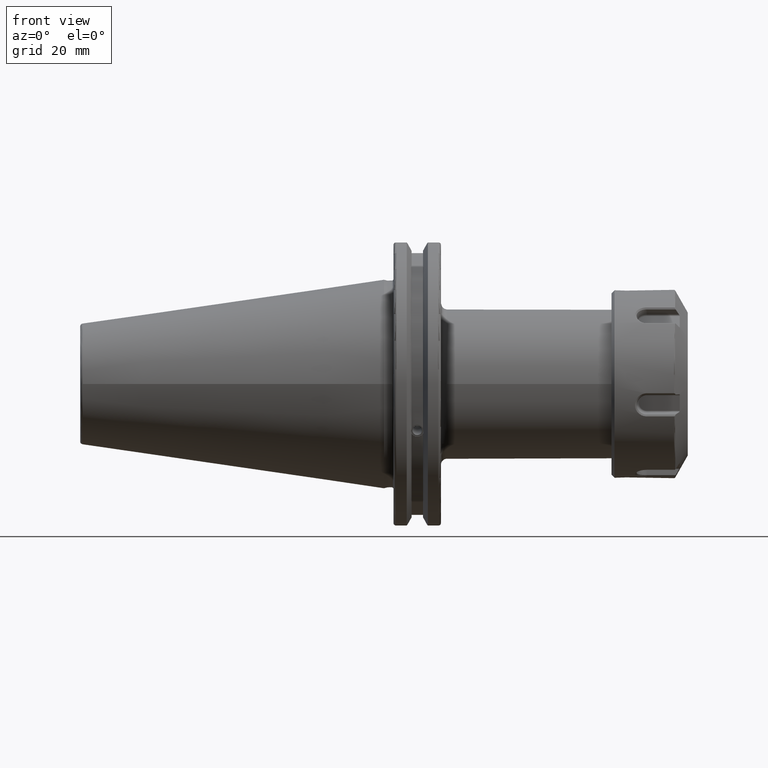
[diagram: clean part render]
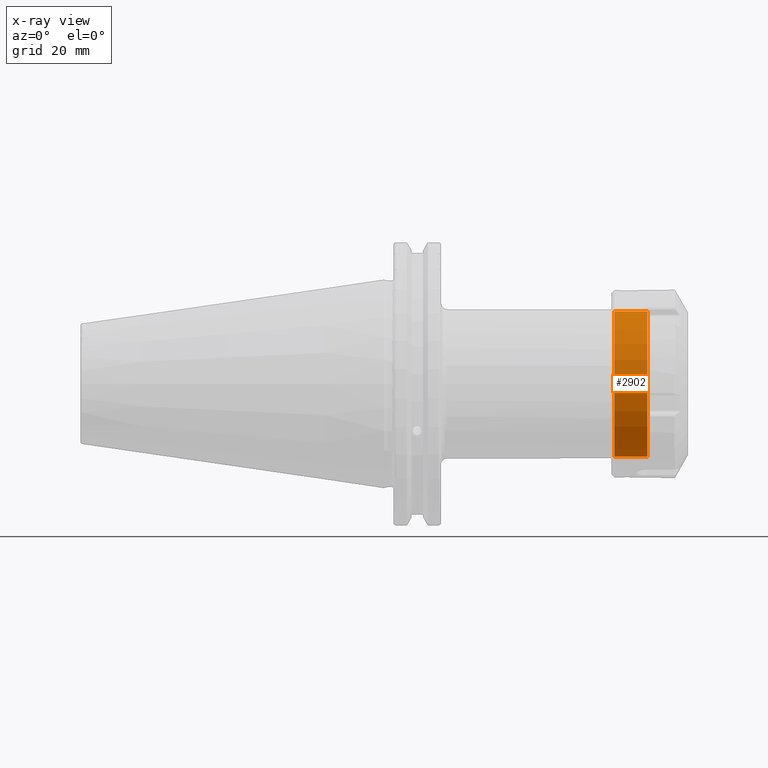
[diagram: x-ray — body ghosted, one internal face saturated and labeled with its STEP entity id]
A machine part, front view, then the same camera in x-ray: the body is ghosted and one INTERNAL B-rep face — a face not visible from any outside direction — is saturated and labeled: STEP entity #2902.
In plain terms, the highlighted cylindrical surface (bore or boss wall) has radius 24.3 mm, axis along (1, 0, 0).
Its self-contained STEP definition (entity closure, byte-faithful):
#312=CYLINDRICAL_SURFACE('',#3258,24.3);
#461=FACE_OUTER_BOUND('',#655,.T.);
#655=EDGE_LOOP('',(#2622,#2623,#2624,#2625,#2626));
#835=LINE('',#6363,#1011);
#1011=VECTOR('',#3973,24.3);
#1150=CIRCLE('',#3257,24.3);
#1151=CIRCLE('',#3259,24.3);
#1152=CIRCLE('',#3260,24.3);
#1427=VERTEX_POINT('',#6357);
#1428=VERTEX_POINT('',#6360);
#1429=VERTEX_POINT('',#6361);
#1833=EDGE_CURVE('',#1427,#1427,#1150,.T.);
#1834=EDGE_CURVE('',#1428,#1429,#1151,.T.);
#1835=EDGE_CURVE('',#1428,#1427,#835,.T.);
#1836=EDGE_CURVE('',#1429,#1428,#1152,.T.);
#2622=ORIENTED_EDGE('',*,*,#1834,.F.);
#2623=ORIENTED_EDGE('',*,*,#1835,.T.);
#2624=ORIENTED_EDGE('',*,*,#1833,.T.);
#2625=ORIENTED_EDGE('',*,*,#1835,.F.);
#2626=ORIENTED_EDGE('',*,*,#1836,.F.);
#2902=ADVANCED_FACE('',(#461),#312,.F.);
#3257=AXIS2_PLACEMENT_3D('',#6358,#3967,#3968);
#3258=AXIS2_PLACEMENT_3D('',#6359,#3969,#3970);
#3259=AXIS2_PLACEMENT_3D('',#6362,#3971,#3972);
#3260=AXIS2_PLACEMENT_3D('',#6364,#3974,#3975);
#3967=DIRECTION('center_axis',(1.,0.,0.));
#3968=DIRECTION('ref_axis',(0.,1.,0.));
#3969=DIRECTION('center_axis',(1.,0.,0.));
#3970=DIRECTION('ref_axis',(0.,1.,0.));
#3971=DIRECTION('center_axis',(1.,0.,0.));
#3972=DIRECTION('ref_axis',(0.,1.,0.));
#3973=DIRECTION('',(1.,0.,0.));
#3974=DIRECTION('center_axis',(1.,0.,0.));
#3975=DIRECTION('ref_axis',(0.,1.,0.));
#6357=CARTESIAN_POINT('',(-0.75,-24.3,0.));
#6358=CARTESIAN_POINT('Origin',(-0.75,0.,0.));
#6359=CARTESIAN_POINT('Origin',(-12.75,0.,0.));
#6360=CARTESIAN_POINT('',(-11.75,-24.3,0.));
#6361=CARTESIAN_POINT('',(-11.75,-24.2995810646731,0.142688757016035));
#6362=CARTESIAN_POINT('Origin',(-11.75,0.,0.));
#6363=CARTESIAN_POINT('',(-12.75,-24.3,-2.97589172192807E-15));
#6364=CARTESIAN_POINT('Origin',(-11.75,0.,0.));